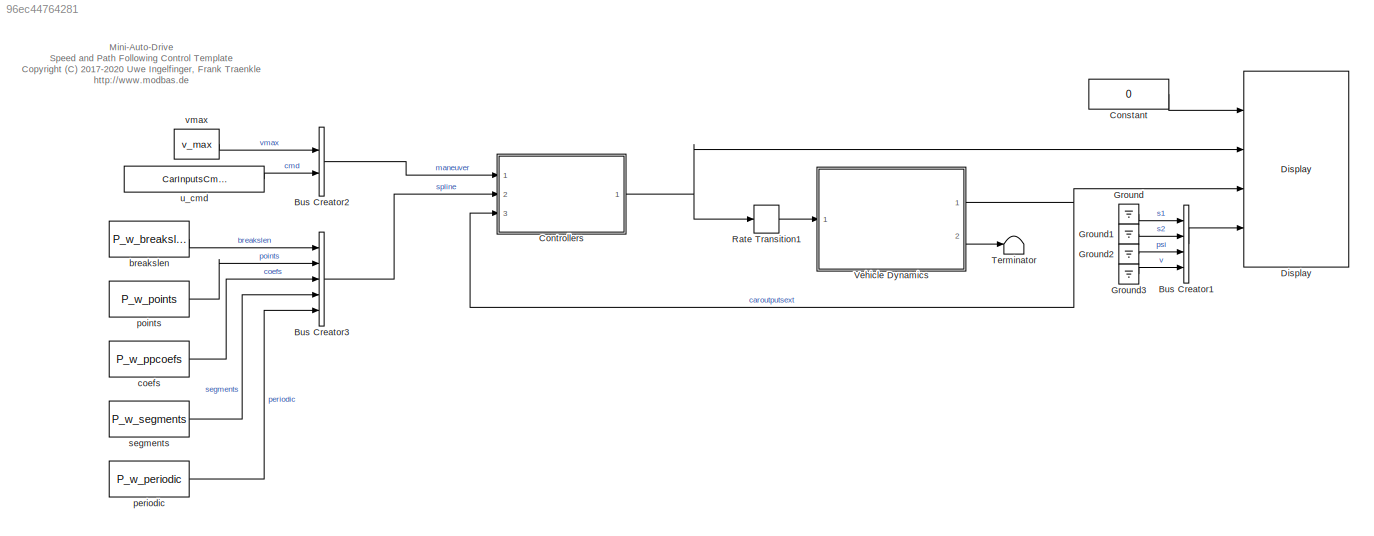
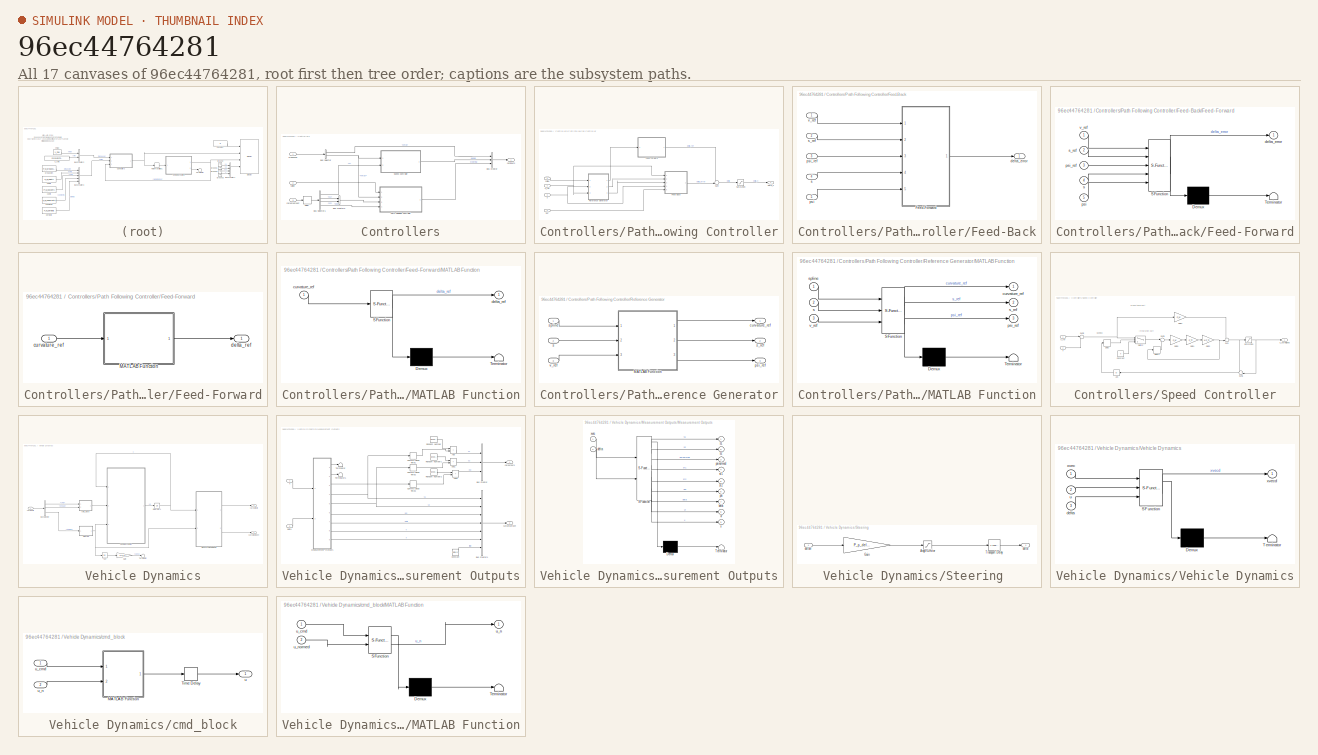
[diagram: thumbnail index - all 17 canvases of the model, root first then tree order]
MODEL slx_96ec44764281
KIND model
CONFIG AbsTol = auto
CONFIG EnableMultiTasking = off
CONFIG FixedStep = P_sim_dt
CONFIG InitFcn = s6_data;
CONFIG MaxStep = auto
CONFIG MinStep = auto
CONFIG RelTol = 1e-3
CONFIG SampleTimeConstraint = Unconstrained
CONFIG Solver = ode4
CONFIG SolverName = ode4
CONFIG StartTime = 0.0
CONFIG StopTime = inf
BLOCK [BusCreator] Bus Creator1
  DisplayOption = bar
  InheritFromInputs = on
  Inputs = 4
  Ports = [4, 1]
BLOCK [BusCreator] Bus Creator2
  DisplayOption = bar
  InheritFromInputs = on
  Inputs = 2
  Ports = [2, 1]
BLOCK [BusCreator] Bus Creator3
  DisplayOption = bar
  InheritFromInputs = on
  Inputs = breakslen,points,coefs,segments,periodic
  OutDataTypeStr = Bus: SPLINE
  Ports = [5, 1]
BLOCK [Constant] Constant
  Value = 0
BLOCK [SubSystem] Controllers
  MinAlgLoopOccurrences = on
  Ports = [3, 1]
  RequestExecContextInheritance = off
  SystemSampleTime = P_sim_dt
  TreatAsAtomicUnit = on
BLOCK [BusCreator] Controllers/Bus Creator
  DisplayOption = bar
  InheritFromInputs = on
  Inputs = 3
  Ports = [3, 1]
BLOCK [BusCreator] Controllers/Bus Creator3
  DisplayOption = bar
  InheritFromInputs = on
  Inputs = 2
  Ports = [2, 1]
BLOCK [BusSelector] Controllers/Bus Selector
  OutputSignals = cmd,vmax
  Ports = [1, 2]
BLOCK [BusSelector] Controllers/Bus Selector1
  OutputSignals = v,s1,s2,psi
  Ports = [1, 4]
BLOCK [Delay] Controllers/Delay
  DelayLength = 1
  InputPortMap = u0
  Ports = [1, 1]
BLOCK [SubSystem] Controllers/Path Following Controller
  Ports = [4, 1]
  RequestExecContextInheritance = off
BLOCK [SubSystem] Controllers/Path Following Controller/Feed-Back
  Ports = [5, 1]
  RequestExecContextInheritance = off
BLOCK [SubSystem] Controllers/Path Following Controller/Feed-Back/Feed-Forward
  ErrorFcn = Stateflow.Translate.translate
  PermitHierarchicalResolution = ExplicitOnly
  Ports = [5, 1]
  RequestExecContextInheritance = off
  SFBlockType = MATLAB Function
  TreatAsAtomicUnit = on
BLOCK [Demux] Controllers/Path Following Controller/Feed-Back/Feed-Forward/ Demux 
  Outputs = 1
  Ports = [1, 1]
BLOCK [S-Function] Controllers/Path Following Controller/Feed-Back/Feed-Forward/ SFunction 
  EnableBusSupport = on
  FunctionName = sf_sfun
  Parameters = P_T_w,P_p_l,P_v_fb_border
  PortCounts = [5 2]
  Ports = [5, 2]
  SFcnIsStateOwnerBlock = off
  SFunctionDeploymentMode = off
  Tag = Stateflow S-Function s6_template_2019a 7
BLOCK [Terminator] Controllers/Path Following Controller/Feed-Back/Feed-Forward/ Terminator 
BLOCK [Outport] Controllers/Path Following Controller/Feed-Back/Feed-Forward/delta_error
BLOCK [Inport] Controllers/Path Following Controller/Feed-Back/Feed-Forward/psi
  Port = 5
BLOCK [Inport] Controllers/Path Following Controller/Feed-Back/Feed-Forward/psi_ref
  Port = 3
BLOCK [Inport] Controllers/Path Following Controller/Feed-Back/Feed-Forward/s
  Port = 4
BLOCK [Inport] Controllers/Path Following Controller/Feed-Back/Feed-Forward/s_ref
  Port = 2
BLOCK [Inport] Controllers/Path Following Controller/Feed-Back/Feed-Forward/v_ref
BLOCK [Outport] Controllers/Path Following Controller/Feed-Back/delta_error
BLOCK [Inport] Controllers/Path Following Controller/Feed-Back/psi
  Port = 5
BLOCK [Inport] Controllers/Path Following Controller/Feed-Back/psi_ref
  Port = 3
BLOCK [Inport] Controllers/Path Following Controller/Feed-Back/s
  Port = 4
BLOCK [Inport] Controllers/Path Following Controller/Feed-Back/s_ref
  Port = 2
BLOCK [Inport] Controllers/Path Following Controller/Feed-Back/v_ref
BLOCK [SubSystem] Controllers/Path Following Controller/Feed-Forward
  Ports = [1, 1]
  RequestExecContextInheritance = off
BLOCK [SubSystem] Controllers/Path Following Controller/Feed-Forward/MATLAB Function
  ErrorFcn = Stateflow.Translate.translate
  PermitHierarchicalResolution = ExplicitOnly
  Ports = [1, 1]
  RequestExecContextInheritance = off
  SFBlockType = MATLAB Function
  TreatAsAtomicUnit = on
BLOCK [Demux] Controllers/Path Following Controller/Feed-Forward/MATLAB Function/ Demux 
  Outputs = 1
  Ports = [1, 1]
BLOCK [S-Function] Controllers/Path Following Controller/Feed-Forward/MATLAB Function/ SFunction 
  EnableBusSupport = on
  FunctionName = sf_sfun
  Parameters = P_p_l
  PortCounts = [1 2]
  Ports = [1, 2]
  SFcnIsStateOwnerBlock = off
  SFunctionDeploymentMode = off
  Tag = Stateflow S-Function s6_template_2019a 8
BLOCK [Terminator] Controllers/Path Following Controller/Feed-Forward/MATLAB Function/ Terminator 
BLOCK [Inport] Controllers/Path Following Controller/Feed-Forward/MATLAB Function/curvature_ref
BLOCK [Outport] Controllers/Path Following Controller/Feed-Forward/MATLAB Function/delta_ref
BLOCK [Inport] Controllers/Path Following Controller/Feed-Forward/curvature_ref
BLOCK [Outport] Controllers/Path Following Controller/Feed-Forward/delta_ref
BLOCK [SubSystem] Controllers/Path Following Controller/Reference Generator
  Ports = [3, 3]
  RequestExecContextInheritance = off
BLOCK [SubSystem] Controllers/Path Following Controller/Reference Generator/MATLAB Function
  ErrorFcn = Stateflow.Translate.translate
  PermitHierarchicalResolution = ExplicitOnly
  Ports = [3, 3]
  RequestExecContextInheritance = off
  SFBlockType = MATLAB Function
  TreatAsAtomicUnit = on
BLOCK [Demux] Controllers/Path Following Controller/Reference Generator/MATLAB Function/ Demux 
  Outputs = 1
  Ports = [1, 1]
BLOCK [S-Function] Controllers/Path Following Controller/Reference Generator/MATLAB Function/ SFunction 
  EnableBusSupport = on
  FunctionName = sf_sfun
  Parameters = P_Tt
  PortCounts = [3 4]
  Ports = [3, 4]
  SFcnIsStateOwnerBlock = off
  SFunctionDeploymentMode = off
  Tag = Stateflow S-Function s6_template_2019a 9
BLOCK [Terminator] Controllers/Path Following Controller/Reference Generator/MATLAB Function/ Terminator 
BLOCK [Outport] Controllers/Path Following Controller/Reference Generator/MATLAB Function/curvature_ref
BLOCK [Outport] Controllers/Path Following Controller/Reference Generator/MATLAB Function/psi_ref
  Port = 3
BLOCK [Inport] Controllers/Path Following Controller/Reference Generator/MATLAB Function/s
  Port = 2
BLOCK [Outport] Controllers/Path Following Controller/Reference Generator/MATLAB Function/s_ref
  Port = 2
BLOCK [Inport] Controllers/Path Following Controller/Reference Generator/MATLAB Function/spline
BLOCK [Inport] Controllers/Path Following Controller/Reference Generator/MATLAB Function/v_ref
  Port = 3
BLOCK [Outport] Controllers/Path Following Controller/Reference Generator/curvature_ref
BLOCK [Outport] Controllers/Path Following Controller/Reference Generator/psi_ref
  Port = 3
BLOCK [Inport] Controllers/Path Following Controller/Reference Generator/s
  Port = 2
BLOCK [Outport] Controllers/Path Following Controller/Reference Generator/s_ref
  Port = 2
BLOCK [Inport] Controllers/Path Following Controller/Reference Generator/spline
BLOCK [Inport] Controllers/Path Following Controller/Reference Generator/v_ref
  Port = 3
BLOCK [Saturate] Controllers/Path Following Controller/Saturation
  LowerLimit = -1
  UpperLimit = 1
BLOCK [Sum] Controllers/Path Following Controller/Sum
  Inputs = ++|
  Ports = [2, 1]
BLOCK [Outport] Controllers/Path Following Controller/delta_n
BLOCK [Inport] Controllers/Path Following Controller/psi
  Port = 4
BLOCK [Inport] Controllers/Path Following Controller/s
  Port = 3
BLOCK [Inport] Controllers/Path Following Controller/spline
BLOCK [Inport] Controllers/Path Following Controller/v_ref
  Port = 2
BLOCK [SubSystem] Controllers/Speed Controller
  Ports = [2, 1]
  RequestExecContextInheritance = off
BLOCK [Abs] Controllers/Speed Controller/Abs
  SaturateOnIntegerOverflow = off
BLOCK [Constant] Controllers/Speed Controller/Constant
  Value = 0
BLOCK [Delay] Controllers/Speed Controller/Delay
  DelayLength = 1
  InitialCondition = 0
  InputPortMap = u0
  Ports = [1, 1]
BLOCK [Delay] Controllers/Speed Controller/Delay1
  DelayLength = 1
  InitialCondition = 0
  InputPortMap = u0
  Ports = [1, 1]
BLOCK [Gain] Controllers/Speed Controller/Gain1
  Gain = P_Tt
BLOCK [Gain] Controllers/Speed Controller/Gain2
  Gain = 1/P_Ti
BLOCK [Gain] Controllers/Speed Controller/Gain4
  Gain = P_kr
BLOCK [Gain] Controllers/Speed Controller/Gain5
  Gain = P_kr
BLOCK [Saturate] Controllers/Speed Controller/Saturation
  LowerLimit = -1
  UpperLimit = 1
BLOCK [Sum] Controllers/Speed Controller/Sum
  Inputs = ++|
  Ports = [2, 1]
BLOCK [Sum] Controllers/Speed Controller/Sum1
  Inputs = +-|
  Ports = [2, 1]
BLOCK [Sum] Controllers/Speed Controller/Sum2
  Inputs = |+-
  Ports = [2, 1]
BLOCK [Sum] Controllers/Speed Controller/Sum3
  Inputs = |++
  Ports = [2, 1]
BLOCK [Switch] Controllers/Speed Controller/Switch
  Criteria = u2 > Threshold
  InputSameDT = off
  SaturateOnIntegerOverflow = off
BLOCK [Outport] Controllers/Speed Controller/u_normalized
BLOCK [Inport] Controllers/Speed Controller/v
  Port = 2
BLOCK [Inport] Controllers/Speed Controller/v_ref
BLOCK [Outport] Controllers/carinputs
BLOCK [Inport] Controllers/caroutputsext
  Port = 3
BLOCK [Inport] Controllers/maneuver
BLOCK [Inport] Controllers/spline
  Port = 2
BLOCK [Reference] Display  REF=mad_lib_template/Display  (lib defined in slx_e896f93816e2)
  Ports = [4]
  SourceBlock = mad_lib_template/Display
  SourceType = SubSystem
BLOCK [Ground] Ground
BLOCK [Ground] Ground1
BLOCK [Ground] Ground2
BLOCK [Ground] Ground3
BLOCK [RateTransition] Rate Transition1
  OutPortSampleTime = P_sim_dt
BLOCK [Terminator] Terminator
BLOCK [SubSystem] Vehicle Dynamics
  Ports = [1, 2]
  RequestExecContextInheritance = off
  TreatAsAtomicUnit = on
BLOCK [BusSelector] Vehicle Dynamics/Bus Selector
  OutputSignals = cmd,pedals,steering
  Ports = [1, 3]
BLOCK [Gain] Vehicle Dynamics/Gain
  Gain = 1/P_p_l
BLOCK [Integrator] Vehicle Dynamics/Integrator4
  InitialCondition = P_mask_vec0
  Ports = [1, 1]
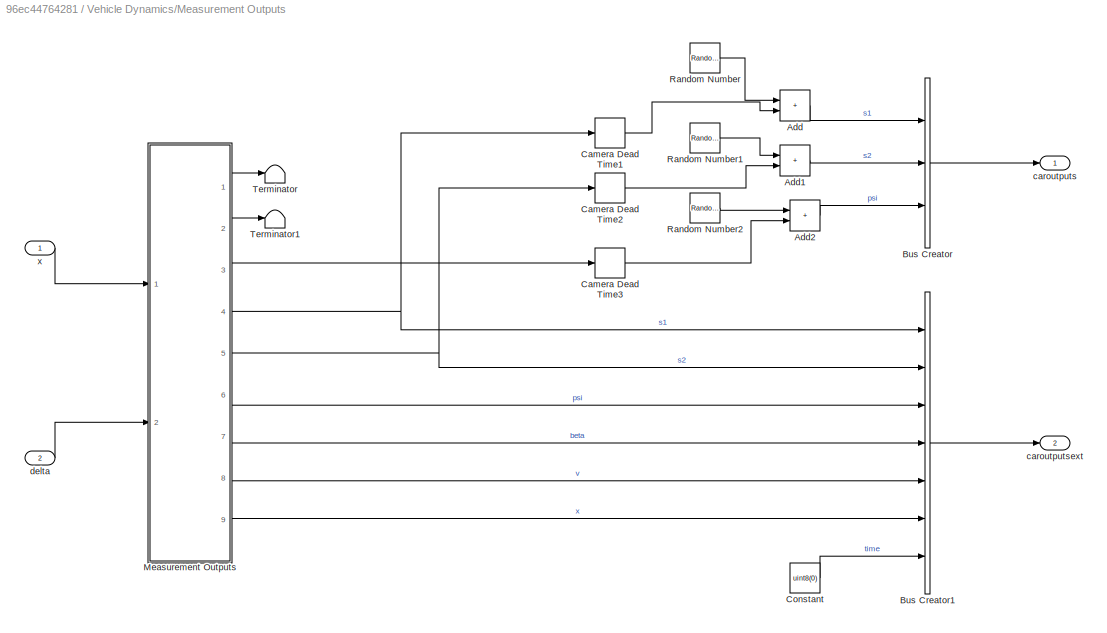
BLOCK [SubSystem] Vehicle Dynamics/Measurement Outputs
  Ports = [2, 2]
  RequestExecContextInheritance = off
BLOCK [Sum] Vehicle Dynamics/Measurement Outputs/Add
  IconShape = rectangular
  Ports = [2, 1]
BLOCK [Sum] Vehicle Dynamics/Measurement Outputs/Add1
  IconShape = rectangular
  Ports = [2, 1]
BLOCK [Sum] Vehicle Dynamics/Measurement Outputs/Add2
  IconShape = rectangular
  Ports = [2, 1]
BLOCK [BusCreator] Vehicle Dynamics/Measurement Outputs/Bus Creator
  DisplayOption = bar
  InheritFromInputs = on
  Inputs = s1,s2,psi
  NonVirtualBus = on
  OutDataTypeStr = Bus: CAROUTPUTS
  Ports = [3, 1]
BLOCK [BusCreator] Vehicle Dynamics/Measurement Outputs/Bus Creator1
  DisplayOption = bar
  InheritFromInputs = on
  Inputs = 7
  NonVirtualBus = on
  OutDataTypeStr = Bus: CAROUTPUTSEXT
  Ports = [7, 1]
BLOCK [TransportDelay] Vehicle Dynamics/Measurement Outputs/Camera Dead Time1
  DelayTime = P_p_output_Tt
  FixedBuffer = on
  InitialOutput = P_p_s10
  Ports = [1, 1]
BLOCK [TransportDelay] Vehicle Dynamics/Measurement Outputs/Camera Dead Time2
  DelayTime = P_p_output_Tt
  FixedBuffer = on
  InitialOutput = P_p_s20
  Ports = [1, 1]
BLOCK [TransportDelay] Vehicle Dynamics/Measurement Outputs/Camera Dead Time3
  DelayTime = P_p_output_Tt
  FixedBuffer = on
  InitialOutput = P_p_psi0
  Ports = [1, 1]
BLOCK [Constant] Vehicle Dynamics/Measurement Outputs/Constant
  Value = uint8(0)
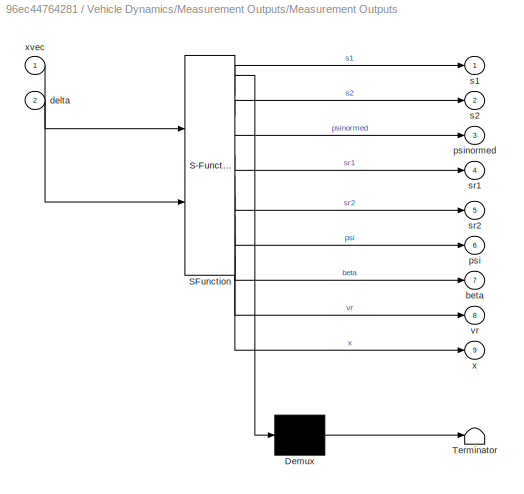
BLOCK [SubSystem] Vehicle Dynamics/Measurement Outputs/Measurement Outputs
  ErrorFcn = Stateflow.Translate.translate
  PermitHierarchicalResolution = ExplicitOnly
  Ports = [2, 9]
  RequestExecContextInheritance = off
  SFBlockType = MATLAB Function
  TreatAsAtomicUnit = on
BLOCK [Demux] Vehicle Dynamics/Measurement Outputs/Measurement Outputs/ Demux 
  Outputs = 1
  Ports = [1, 1]
BLOCK [S-Function] Vehicle Dynamics/Measurement Outputs/Measurement Outputs/ SFunction 
  EnableBusSupport = on
  FunctionName = sf_sfun
  Parameters = P_p_l,P_p_rearaxle_1,P_p_v_min
  PortCounts = [2 10]
  Ports = [2, 10]
  SFcnIsStateOwnerBlock = off
  SFunctionDeploymentMode = off
  Tag = Stateflow S-Function s6_template_2019a 1
BLOCK [Terminator] Vehicle Dynamics/Measurement Outputs/Measurement Outputs/ Terminator 
BLOCK [Outport] Vehicle Dynamics/Measurement Outputs/Measurement Outputs/beta
  Port = 7
  VectorParamsAs1DForOutWhenUnconnected = off
BLOCK [Inport] Vehicle Dynamics/Measurement Outputs/Measurement Outputs/delta
  Port = 2
BLOCK [Outport] Vehicle Dynamics/Measurement Outputs/Measurement Outputs/psi
  Port = 6
  VectorParamsAs1DForOutWhenUnconnected = off
BLOCK [Outport] Vehicle Dynamics/Measurement Outputs/Measurement Outputs/psinormed
  Port = 3
  VectorParamsAs1DForOutWhenUnconnected = off
BLOCK [Outport] Vehicle Dynamics/Measurement Outputs/Measurement Outputs/s1
  VectorParamsAs1DForOutWhenUnconnected = off
BLOCK [Outport] Vehicle Dynamics/Measurement Outputs/Measurement Outputs/s2
  Port = 2
  VectorParamsAs1DForOutWhenUnconnected = off
BLOCK [Outport] Vehicle Dynamics/Measurement Outputs/Measurement Outputs/sr1
  Port = 4
  VectorParamsAs1DForOutWhenUnconnected = off
BLOCK [Outport] Vehicle Dynamics/Measurement Outputs/Measurement Outputs/sr2
  Port = 5
  VectorParamsAs1DForOutWhenUnconnected = off
BLOCK [Outport] Vehicle Dynamics/Measurement Outputs/Measurement Outputs/vr
  Port = 8
  VectorParamsAs1DForOutWhenUnconnected = off
BLOCK [Outport] Vehicle Dynamics/Measurement Outputs/Measurement Outputs/x
  Port = 9
  VectorParamsAs1DForOutWhenUnconnected = off
BLOCK [Inport] Vehicle Dynamics/Measurement Outputs/Measurement Outputs/xvec
BLOCK [RandomNumber] Vehicle Dynamics/Measurement Outputs/Random Number
  SampleTime = P_sim_dt
  Variance = P_p_sstd^2
BLOCK [RandomNumber] Vehicle Dynamics/Measurement Outputs/Random Number1
  SampleTime = P_sim_dt
  Seed = 1
  Variance = P_p_sstd^2
BLOCK [RandomNumber] Vehicle Dynamics/Measurement Outputs/Random Number2
  SampleTime = P_sim_dt
  Seed = 2
  Variance = P_p_psistd^2
BLOCK [Terminator] Vehicle Dynamics/Measurement Outputs/Terminator
BLOCK [Terminator] Vehicle Dynamics/Measurement Outputs/Terminator1
BLOCK [Outport] Vehicle Dynamics/Measurement Outputs/caroutputs
  VectorParamsAs1DForOutWhenUnconnected = off
BLOCK [Outport] Vehicle Dynamics/Measurement Outputs/caroutputsext
  Port = 2
  VectorParamsAs1DForOutWhenUnconnected = off
BLOCK [Inport] Vehicle Dynamics/Measurement Outputs/delta
  Port = 2
BLOCK [Inport] Vehicle Dynamics/Measurement Outputs/x
BLOCK [SubSystem] Vehicle Dynamics/Steering 
  Ports = [1, 1]
  RequestExecContextInheritance = off
BLOCK [Saturate] Vehicle Dynamics/Steering /Angle Limiter
  LowerLimit = P_p_delta_min
  UpperLimit = P_p_delta_max
BLOCK [Gain] Vehicle Dynamics/Steering /Gain
  Gain = P_p_delta_max
BLOCK [TransportDelay] Vehicle Dynamics/Steering /Transport Delay
  DelayTime = P_p_delta_Tt
  FixedBuffer = on
  Ports = [1, 1]
BLOCK [Outport] Vehicle Dynamics/Steering /delta
  VectorParamsAs1DForOutWhenUnconnected = off
BLOCK [Inport] Vehicle Dynamics/Steering /deltan
BLOCK [Trigonometry] Vehicle Dynamics/Tan
  Operator = tan
  Ports = [1, 1]
BLOCK [Terminator] Vehicle Dynamics/Terminator
BLOCK [SubSystem] Vehicle Dynamics/Vehicle Dynamics
  ErrorFcn = Stateflow.Translate.translate
  PermitHierarchicalResolution = ExplicitOnly
  Ports = [3, 1]
  RequestExecContextInheritance = off
  SFBlockType = MATLAB Function
  TreatAsAtomicUnit = on
BLOCK [Demux] Vehicle Dynamics/Vehicle Dynamics/ Demux 
  Outputs = 1
  Ports = [1, 1]
BLOCK [S-Function] Vehicle Dynamics/Vehicle Dynamics/ SFunction 
  EnableBusSupport = on
  FunctionName = sf_sfun
  Parameters = P_p_Bf,P_p_Br,P_p_Cf,P_p_Cr,P_p_Df,P_p_Dr,P_p_J,P_p_T,P_p_frontaxle_1,P_p_k,P_p_l,P_p_m,P_p_rearaxle_1,P_p_v_min
  PortCounts = [3 2]
  Ports = [3, 2]
  SFcnIsStateOwnerBlock = off
  SFunctionDeploymentMode = off
  Tag = Stateflow S-Function s6_template_2019a 2
BLOCK [Terminator] Vehicle Dynamics/Vehicle Dynamics/ Terminator 
BLOCK [Inport] Vehicle Dynamics/Vehicle Dynamics/delta
  Port = 3
BLOCK [Inport] Vehicle Dynamics/Vehicle Dynamics/u
  Port = 2
BLOCK [Inport] Vehicle Dynamics/Vehicle Dynamics/xvec
BLOCK [Outport] Vehicle Dynamics/Vehicle Dynamics/xvecd
  VectorParamsAs1DForOutWhenUnconnected = off
BLOCK [Inport] Vehicle Dynamics/carinputs
BLOCK [Outport] Vehicle Dynamics/caroutputs
  Port = 2
  VectorParamsAs1DForOutWhenUnconnected = off
BLOCK [Outport] Vehicle Dynamics/caroutputsext
  VectorParamsAs1DForOutWhenUnconnected = off
BLOCK [SubSystem] Vehicle Dynamics/cmd_block
  Ports = [2, 1]
  RequestExecContextInheritance = off
BLOCK [SubSystem] Vehicle Dynamics/cmd_block/MATLAB Function
  ErrorFcn = Stateflow.Translate.translate
  PermitHierarchicalResolution = ExplicitOnly
  Ports = [2, 1]
  RequestExecContextInheritance = off
  SFBlockType = MATLAB Function
  TreatAsAtomicUnit = on
BLOCK [Demux] Vehicle Dynamics/cmd_block/MATLAB Function/ Demux 
  Outputs = 1
  Ports = [1, 1]
BLOCK [S-Function] Vehicle Dynamics/cmd_block/MATLAB Function/ SFunction 
  EnableBusSupport = on
  FunctionName = sf_sfun
  Parameters = CarInputsCmdForward,CarInputsCmdHalt,CarInputsCmdReverse,CarInputsCmdSlow,P_u_slow
  PortCounts = [2 2]
  Ports = [2, 2]
  SFcnIsStateOwnerBlock = off
  SFunctionDeploymentMode = off
  Tag = Stateflow S-Function s6_template_2019a 6
BLOCK [Terminator] Vehicle Dynamics/cmd_block/MATLAB Function/ Terminator 
BLOCK [Inport] Vehicle Dynamics/cmd_block/MATLAB Function/u_cmd
BLOCK [Outport] Vehicle Dynamics/cmd_block/MATLAB Function/u_n
BLOCK [Inport] Vehicle Dynamics/cmd_block/MATLAB Function/u_normed
  Port = 2
BLOCK [TransportDelay] Vehicle Dynamics/cmd_block/Time Delay
  DelayTime = P_p_uTt
  FixedBuffer = on
  Ports = [1, 1]
BLOCK [Outport] Vehicle Dynamics/cmd_block/u
  VectorParamsAs1DForOutWhenUnconnected = off
BLOCK [Inport] Vehicle Dynamics/cmd_block/u_cmd
BLOCK [Inport] Vehicle Dynamics/cmd_block/u_n
  Port = 2
BLOCK [Constant] breakslen
  Value = P_w_breakslen
BLOCK [Constant] coefs
  Value = P_w_ppcoefs
BLOCK [Constant] periodic
  Value = P_w_periodic
BLOCK [Constant] points
  Value = P_w_points
BLOCK [Constant] segments
  Value = P_w_segments
BLOCK [Constant] u_cmd
  Value = CarInputsCmdForward
BLOCK [Constant] vmax
  Value = v_max
ANNOTATION (root): Mini-Auto-Drive Speed and Path Following Control Template <copyright redacted>
ANNOTATION Controllers/Speed Controller: Clamping
ANNOTATION Controllers/Speed Controller: Integration part
ANNOTATION Controllers/Speed Controller: Proportional part
LINE Bus Creator1:1 -> Display:4
LINE Bus Creator2:1 -> Controllers:1
LINE Bus Creator3:1 -> Controllers:2
LINE Constant:1 -> Display:1
LINE Controllers/Bus Creator3:1 -> Controllers/Path Following Controller:3
LINE Controllers/Bus Creator:1 -> Controllers/carinputs:1
LINE Controllers/Bus Selector1:1 -> Controllers/Speed Controller:2
LINE Controllers/Bus Selector1:2 -> Controllers/Bus Creator3:1
LINE Controllers/Bus Selector1:3 -> Controllers/Bus Creator3:2
LINE Controllers/Bus Selector1:4 -> Controllers/Path Following Controller:4
LINE Controllers/Bus Selector:1 -> Controllers/Bus Creator:1
NET Controllers/Bus Selector:2 -> Controllers/Path Following Controller:2, Controllers/Speed Controller:1
LINE Controllers/Delay:1 -> Controllers/Bus Selector1:1
LINE Controllers/Path Following Controller/Feed-Back/Feed-Forward:1 -> Controllers/Path Following Controller/Feed-Back/delta_error:1
LINE Controllers/Path Following Controller/Feed-Back/psi:1 -> Controllers/Path Following Controller/Feed-Back/Feed-Forward:5
LINE Controllers/Path Following Controller/Feed-Back/psi_ref:1 -> Controllers/Path Following Controller/Feed-Back/Feed-Forward:3
LINE Controllers/Path Following Controller/Feed-Back/s:1 -> Controllers/Path Following Controller/Feed-Back/Feed-Forward:4
LINE Controllers/Path Following Controller/Feed-Back/s_ref:1 -> Controllers/Path Following Controller/Feed-Back/Feed-Forward:2
LINE Controllers/Path Following Controller/Feed-Back/v_ref:1 -> Controllers/Path Following Controller/Feed-Back/Feed-Forward:1
LINE Controllers/Path Following Controller/Feed-Back:1 -> Controllers/Path Following Controller/Sum:2
LINE Controllers/Path Following Controller/Feed-Forward/MATLAB Function:1 -> Controllers/Path Following Controller/Feed-Forward/delta_ref:1
LINE Controllers/Path Following Controller/Feed-Forward/curvature_ref:1 -> Controllers/Path Following Controller/Feed-Forward/MATLAB Function:1
LINE Controllers/Path Following Controller/Feed-Forward:1 -> Controllers/Path Following Controller/Sum:1
LINE Controllers/Path Following Controller/Reference Generator/MATLAB Function:1 -> Controllers/Path Following Controller/Reference Generator/curvature_ref:1
LINE Controllers/Path Following Controller/Reference Generator/MATLAB Function:2 -> Controllers/Path Following Controller/Reference Generator/s_ref:1
LINE Controllers/Path Following Controller/Reference Generator/MATLAB Function:3 -> Controllers/Path Following Controller/Reference Generator/psi_ref:1
LINE Controllers/Path Following Controller/Reference Generator/s:1 -> Controllers/Path Following Controller/Reference Generator/MATLAB Function:2
LINE Controllers/Path Following Controller/Reference Generator/spline:1 -> Controllers/Path Following Controller/Reference Generator/MATLAB Function:1
LINE Controllers/Path Following Controller/Reference Generator/v_ref:1 -> Controllers/Path Following Controller/Reference Generator/MATLAB Function:3
LINE Controllers/Path Following Controller/Reference Generator:1 -> Controllers/Path Following Controller/Feed-Forward:1
LINE Controllers/Path Following Controller/Reference Generator:2 -> Controllers/Path Following Controller/Feed-Back:2
LINE Controllers/Path Following Controller/Reference Generator:3 -> Controllers/Path Following Controller/Feed-Back:3
LINE Controllers/Path Following Controller/Saturation:1 -> Controllers/Path Following Controller/delta_n:1
LINE Controllers/Path Following Controller/Sum:1 -> Controllers/Path Following Controller/Saturation:1
LINE Controllers/Path Following Controller/psi:1 -> Controllers/Path Following Controller/Feed-Back:5
NET Controllers/Path Following Controller/s:1 -> Controllers/Path Following Controller/Feed-Back:4, Controllers/Path Following Controller/Reference Generator:2
LINE Controllers/Path Following Controller/spline:1 -> Controllers/Path Following Controller/Reference Generator:1
NET Controllers/Path Following Controller/v_ref:1 -> Controllers/Path Following Controller/Feed-Back:1, Controllers/Path Following Controller/Reference Generator:3
LINE Controllers/Path Following Controller:1 -> Controllers/Bus Creator:3
LINE Controllers/Speed Controller/Abs:1 -> Controllers/Speed Controller/Delay:1
LINE Controllers/Speed Controller/Constant:1 -> Controllers/Speed Controller/Switch:3
LINE Controllers/Speed Controller/Delay1:1 -> Controllers/Speed Controller/Sum3:2
LINE Controllers/Speed Controller/Delay:1 -> Controllers/Speed Controller/Switch:2
LINE Controllers/Speed Controller/Gain1:1 -> Controllers/Speed Controller/Gain2:1
NET Controllers/Speed Controller/Gain2:1 -> Controllers/Speed Controller/Delay1:1, Controllers/Speed Controller/Sum:2
LINE Controllers/Speed Controller/Gain4:1 -> Controllers/Speed Controller/Sum:1
LINE Controllers/Speed Controller/Gain5:1 -> Controllers/Speed Controller/Gain1:1
NET Controllers/Speed Controller/Saturation:1 -> Controllers/Speed Controller/Sum1:2, Controllers/Speed Controller/u_normalized:1
LINE Controllers/Speed Controller/Sum1:1 -> Controllers/Speed Controller/Abs:1
NET Controllers/Speed Controller/Sum2:1 -> Controllers/Speed Controller/Gain4:1, Controllers/Speed Controller/Switch:1
LINE Controllers/Speed Controller/Sum3:1 -> Controllers/Speed Controller/Gain5:1
NET Controllers/Speed Controller/Sum:1 -> Controllers/Speed Controller/Saturation:1, Controllers/Speed Controller/Sum1:1
LINE Controllers/Speed Controller/Switch:1 -> Controllers/Speed Controller/Sum3:1
LINE Controllers/Speed Controller/v:1 -> Controllers/Speed Controller/Sum2:2
LINE Controllers/Speed Controller/v_ref:1 -> Controllers/Speed Controller/Sum2:1
LINE Controllers/Speed Controller:1 -> Controllers/Bus Creator:2
LINE Controllers/caroutputsext:1 -> Controllers/Delay:1
LINE Controllers/maneuver:1 -> Controllers/Bus Selector:1
LINE Controllers/spline:1 -> Controllers/Path Following Controller:1
NET Controllers:1 -> Display:2, Rate Transition1:1
LINE Ground1:1 -> Bus Creator1:2
LINE Ground2:1 -> Bus Creator1:3
LINE Ground3:1 -> Bus Creator1:4
LINE Ground:1 -> Bus Creator1:1
LINE Rate Transition1:1 -> Vehicle Dynamics:1
LINE Vehicle Dynamics/Bus Selector:1 -> Vehicle Dynamics/cmd_block:1
LINE Vehicle Dynamics/Bus Selector:2 -> Vehicle Dynamics/cmd_block:2
LINE Vehicle Dynamics/Bus Selector:3 -> Vehicle Dynamics/Steering :1
LINE Vehicle Dynamics/Gain:1 -> Vehicle Dynamics/Terminator:1
NET Vehicle Dynamics/Integrator4:1 -> Vehicle Dynamics/Measurement Outputs:1, Vehicle Dynamics/Vehicle Dynamics:1
LINE Vehicle Dynamics/Measurement Outputs/Add1:1 -> Vehicle Dynamics/Measurement Outputs/Bus Creator:2
LINE Vehicle Dynamics/Measurement Outputs/Add2:1 -> Vehicle Dynamics/Measurement Outputs/Bus Creator:3
LINE Vehicle Dynamics/Measurement Outputs/Add:1 -> Vehicle Dynamics/Measurement Outputs/Bus Creator:1
LINE Vehicle Dynamics/Measurement Outputs/Bus Creator1:1 -> Vehicle Dynamics/Measurement Outputs/caroutputsext:1
LINE Vehicle Dynamics/Measurement Outputs/Bus Creator:1 -> Vehicle Dynamics/Measurement Outputs/caroutputs:1
LINE Vehicle Dynamics/Measurement Outputs/Camera Dead Time1:1 -> Vehicle Dynamics/Measurement Outputs/Add:2
LINE Vehicle Dynamics/Measurement Outputs/Camera Dead Time2:1 -> Vehicle Dynamics/Measurement Outputs/Add1:2
LINE Vehicle Dynamics/Measurement Outputs/Camera Dead Time3:1 -> Vehicle Dynamics/Measurement Outputs/Add2:2
LINE Vehicle Dynamics/Measurement Outputs/Constant:1 -> Vehicle Dynamics/Measurement Outputs/Bus Creator1:7
LINE Vehicle Dynamics/Measurement Outputs/Measurement Outputs:1 -> Vehicle Dynamics/Measurement Outputs/Terminator:1
LINE Vehicle Dynamics/Measurement Outputs/Measurement Outputs:2 -> Vehicle Dynamics/Measurement Outputs/Terminator1:1
LINE Vehicle Dynamics/Measurement Outputs/Measurement Outputs:3 -> Vehicle Dynamics/Measurement Outputs/Camera Dead Time3:1
NET Vehicle Dynamics/Measurement Outputs/Measurement Outputs:4 -> Vehicle Dynamics/Measurement Outputs/Bus Creator1:1, Vehicle Dynamics/Measurement Outputs/Camera Dead Time1:1
NET Vehicle Dynamics/Measurement Outputs/Measurement Outputs:5 -> Vehicle Dynamics/Measurement Outputs/Bus Creator1:2, Vehicle Dynamics/Measurement Outputs/Camera Dead Time2:1
LINE Vehicle Dynamics/Measurement Outputs/Measurement Outputs:6 -> Vehicle Dynamics/Measurement Outputs/Bus Creator1:3
LINE Vehicle Dynamics/Measurement Outputs/Measurement Outputs:7 -> Vehicle Dynamics/Measurement Outputs/Bus Creator1:4
LINE Vehicle Dynamics/Measurement Outputs/Measurement Outputs:8 -> Vehicle Dynamics/Measurement Outputs/Bus Creator1:5
LINE Vehicle Dynamics/Measurement Outputs/Measurement Outputs:9 -> Vehicle Dynamics/Measurement Outputs/Bus Creator1:6
LINE Vehicle Dynamics/Measurement Outputs/Random Number1:1 -> Vehicle Dynamics/Measurement Outputs/Add1:1
LINE Vehicle Dynamics/Measurement Outputs/Random Number2:1 -> Vehicle Dynamics/Measurement Outputs/Add2:1
LINE Vehicle Dynamics/Measurement Outputs/Random Number:1 -> Vehicle Dynamics/Measurement Outputs/Add:1
LINE Vehicle Dynamics/Measurement Outputs/delta:1 -> Vehicle Dynamics/Measurement Outputs/Measurement Outputs:2
LINE Vehicle Dynamics/Measurement Outputs/x:1 -> Vehicle Dynamics/Measurement Outputs/Measurement Outputs:1
LINE Vehicle Dynamics/Measurement Outputs:1 -> Vehicle Dynamics/caroutputs:1
LINE Vehicle Dynamics/Measurement Outputs:2 -> Vehicle Dynamics/caroutputsext:1
LINE Vehicle Dynamics/Steering /Angle Limiter:1 -> Vehicle Dynamics/Steering /Transport Delay:1
LINE Vehicle Dynamics/Steering /Gain:1 -> Vehicle Dynamics/Steering /Angle Limiter:1
LINE Vehicle Dynamics/Steering /Transport Delay:1 -> Vehicle Dynamics/Steering /delta:1
LINE Vehicle Dynamics/Steering /deltan:1 -> Vehicle Dynamics/Steering /Gain:1
NET Vehicle Dynamics/Steering :1 -> Vehicle Dynamics/Measurement Outputs:2, Vehicle Dynamics/Tan:1, Vehicle Dynamics/Vehicle Dynamics:3
LINE Vehicle Dynamics/Tan:1 -> Vehicle Dynamics/Gain:1
LINE Vehicle Dynamics/Vehicle Dynamics:1 -> Vehicle Dynamics/Integrator4:1
LINE Vehicle Dynamics/carinputs:1 -> Vehicle Dynamics/Bus Selector:1
LINE Vehicle Dynamics/cmd_block/MATLAB Function:1 -> Vehicle Dynamics/cmd_block/Time Delay:1
LINE Vehicle Dynamics/cmd_block/Time Delay:1 -> Vehicle Dynamics/cmd_block/u:1
LINE Vehicle Dynamics/cmd_block/u_cmd:1 -> Vehicle Dynamics/cmd_block/MATLAB Function:1
LINE Vehicle Dynamics/cmd_block/u_n:1 -> Vehicle Dynamics/cmd_block/MATLAB Function:2
LINE Vehicle Dynamics/cmd_block:1 -> Vehicle Dynamics/Vehicle Dynamics:2
NET Vehicle Dynamics:1 -> Controllers:3, Display:3
LINE Vehicle Dynamics:2 -> Terminator:1
LINE breakslen:1 -> Bus Creator3:1
LINE coefs:1 -> Bus Creator3:3
LINE periodic:1 -> Bus Creator3:5
LINE points:1 -> Bus Creator3:2
LINE segments:1 -> Bus Creator3:4
LINE u_cmd:1 -> Bus Creator2:2
LINE vmax:1 -> Bus Creator2:1
note: NET lines group one-source signal fan-out (src -> all destinations, sorted); 1:1 wires keep LINE
CHART Vehicle Dynamics/Measurement Outputs/Measurement Outputs states=1 transitions=1
  STATE_LABEL 'eML_blk_kernel()'
  STATE_LABEL 'SCRIPT:\nfunction [s1, s2, psinormed, sr1, sr2, psi, beta, vr, x] = outputs(xvec, delta, P_p_rearaxle_1, P_p_v_min, P_p_l)\n%#codegen\nvc1 = xvec(1);\ns1 = xvec(2);\ns2 = xvec(3);\npsi = xvec(4);\nx = xvec(7);\n\npsinormed = mod(psi, 2*pi);\nif psinormed > pi\n    psinormed = psinormed - 2*pi;\nend\nbeta = 0;\nsr1 = s1 - P_p_rearaxle_1 * cos(psi);\nsr2 = s2 - P_p_rearaxle_1 * sin(psi);\nvr = vc1;\nend\n'
CHART Vehicle Dynamics/Vehicle Dynamics states=1 transitions=1
  STATE_LABEL 'eML_blk_kernel()'
  STATE_LABEL 'SCRIPT:\nfunction xvecd = dynamics(xvec, u, delta, P_p_Br, P_p_Bf, P_p_Cr, P_p_Cf, P_p_Dr, P_p_Df, ...\n    P_p_rearaxle_1, P_p_frontaxle_1, P_p_m, P_p_J, P_p_k, P_p_T, P_p_v_min, P_p_l)\n%#codegen\n\nvc1 = xvec(1);\npsi = xvec(4);\npsid = xvec(5);\nvc2 = xvec(6);\n\nif abs(vc1) > P_p_v_min % avoid model singularity at zero speed\n    %% bicycle model with Magic Tire\n    spsi = sin(psi);\n    cpsi = cos(psi);...<+1416ch>'
CHART Vehicle Dynamics/cmd_block/MATLAB Function states=1 transitions=1
  STATE_LABEL 'eML_blk_kernel()'
  STATE_LABEL 'SCRIPT:\nfunction u_n = fcn(u_cmd, u_normed, P_u_slow, CarInputsCmdSlow,  CarInputsCmdReverse, CarInputsCmdForward, CarInputsCmdHalt)\n\nu_n = u_normed;\nif u_cmd == CarInputsCmdHalt\n    u_n = 0;\nelseif u_cmd == CarInputsCmdForward\n    if u_normed > 1\n        u_n = 1;\n    elseif u_normed < 0\n        u_n = 0;\n    end\nelseif u_cmd == CarInputsCmdReverse\n    if u_normed > 0\n        u_n = 0;\n    elseif u_...<+111ch>'
CHART Controllers/Path Following Controller/Feed-Back/Feed-Forward states=1 transitions=1
  STATE_LABEL 'eML_blk_kernel()'
  STATE_LABEL "SCRIPT:\nfunction delta_error = feed_back(v_ref, s_ref, psi_ref, s, psi, P_v_fb_border, P_p_l, P_T_w)\n\n\nif abs(v_ref) < P_v_fb_border\n    v_ref = sign(v_ref) .* P_v_fb_border;\nend\n\nnormal_vector_ref = [-sin(psi_ref); cos(psi_ref)];\npsi_error = psi - psi_ref;\npsi_error = mod(psi_error, 2*pi);\nif psi_error > pi\n    psi_error = psi_error - 2*pi;\nend\ns_c2e = (s - s_ref)' * normal_vector_ref;\ndelta_erro...<+113ch>"
CHART Controllers/Path Following Controller/Feed-Forward/MATLAB Function states=1 transitions=1
  STATE_LABEL 'eML_blk_kernel()'
  STATE_LABEL 'SCRIPT:\nfunction delta_ref = feed_forward(curvature_ref, P_p_l)\n\ndelta_ref = atan(P_p_l * curvature_ref);\n'
CHART Controllers/Path Following Controller/Reference Generator/MATLAB Function states=1 transitions=1
  STATE_LABEL 'eML_blk_kernel()'
  STATE_LABEL 'SCRIPT:\nfunction [curvature_ref, s_ref, psi_ref] = reference_generator(spline, s, v_ref, P_Tt)\n\n\n[w, ~]  = mbc_spline_get_reference(s, spline.breakslen, spline.points, spline.coefs, spline.periodic, v_ref, P_Tt);\n\ns_ref = [w(3); w(4)];\npsi_ref = w(2);\ncurvature_ref = w(5);\n'
